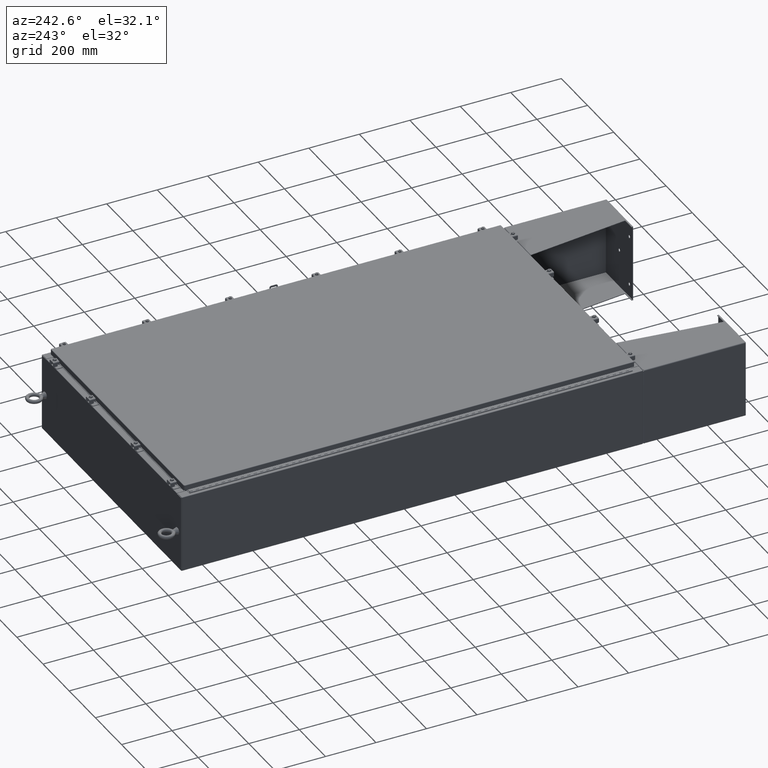
[diagram: clean part render]
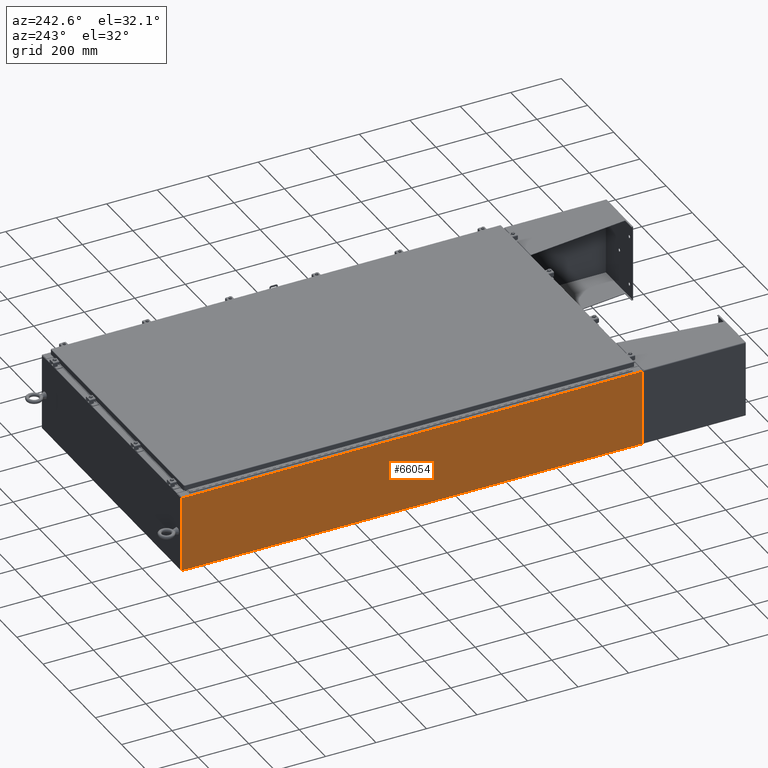
[diagram: same view with one face highlighted and labeled with its STEP entity id]
A machine part, auxiliary view. The second image highlights one B-rep face of the part: STEP entity #66054.
In plain terms, the highlighted planar face has unit normal (1, 0, 0).
Its self-contained STEP definition (entity closure, byte-faithful):
#893 = DIRECTION ( 'NONE',  ( 3.665280361804584200E-015, -2.229735323599324900E-032, -1.000000000000000000 ) ) ;
#1221 = CARTESIAN_POINT ( 'NONE',  ( -20.99999999999999600, 0.0000000000000000000, -7.723170125390783800E-014 ) ) ;
#2287 = ORIENTED_EDGE ( 'NONE', *, *, #67745, .F. ) ;
#4138 = CARTESIAN_POINT ( 'NONE',  ( -20.99999999999999600, -35.92529999999999300, -7.723170125390783800E-014 ) ) ;
#6625 = ORIENTED_EDGE ( 'NONE', *, *, #55552, .T. ) ;
#7713 = CARTESIAN_POINT ( 'NONE',  ( -21.00000000000003900, 35.92530000000000000, 11.83760000000000000 ) ) ;
#9719 = AXIS2_PLACEMENT_3D ( 'NONE', #1221, #25081, #66540 ) ;
#11700 = CARTESIAN_POINT ( 'NONE',  ( -20.99999999999999600, -35.92530000000000000, 0.01299999999999764400 ) ) ;
#19041 = PLANE ( 'NONE',  #9719 ) ;
#20461 = LINE ( 'NONE', #4138, #48362 ) ;
#25081 = DIRECTION ( 'NONE',  ( 1.000000000000000000, 7.921611184256002800E-046, 3.665280361804584200E-015 ) ) ;
#32420 = VERTEX_POINT ( 'NONE', #67339 ) ;
#36002 = EDGE_CURVE ( 'NONE', #56201, #76482, #20461, .T. ) ;
#36275 = VECTOR ( 'NONE', #67053, 39.37007874015748100 ) ;
#36411 = EDGE_CURVE ( 'NONE', #76482, #72015, #53842, .T. ) ;
#36459 = CARTESIAN_POINT ( 'NONE',  ( -20.99999999999999600, 35.92530000000000000, -7.723170125390783800E-014 ) ) ;
#37605 = ORIENTED_EDGE ( 'NONE', *, *, #36002, .T. ) ;
#38703 = LINE ( 'NONE', #36459, #68285 ) ;
#46730 = VECTOR ( 'NONE', #63701, 39.37007874015748100 ) ;
#48362 = VECTOR ( 'NONE', #51591, 39.37007874015748100 ) ;
#51591 = DIRECTION ( 'NONE',  ( -3.665280361804584200E-015, -4.379057701015054300E-047, 1.000000000000000000 ) ) ;
#51802 = CARTESIAN_POINT ( 'NONE',  ( -20.99999999999999600, 35.92530000000000000, 0.01299999999999764400 ) ) ;
#51994 = EDGE_LOOP ( 'NONE', ( #54900, #6625, #2287, #37605 ) ) ;
#53842 = LINE ( 'NONE', #61109, #36275 ) ;
#54900 = ORIENTED_EDGE ( 'NONE', *, *, #36411, .T. ) ;
#55552 = EDGE_CURVE ( 'NONE', #72015, #32420, #38703, .T. ) ;
#56201 = VERTEX_POINT ( 'NONE', #11700 ) ;
#59046 = FACE_OUTER_BOUND ( 'NONE', #51994, .T. ) ;
#61109 = CARTESIAN_POINT ( 'NONE',  ( -21.00000000000003900, -35.92530000000000000, 11.83760000000000000 ) ) ;
#62471 = LINE ( 'NONE', #51802, #46730 ) ;
#63701 = DIRECTION ( 'NONE',  ( -7.921611184256002800E-046, 1.000000000000000000, -2.941710864917871900E-060 ) ) ;
#66054 = ADVANCED_FACE ( 'NONE', ( #59046 ), #19041, .F. ) ;
#66540 = DIRECTION ( 'NONE',  ( 3.665280361804584200E-015, 0.0000000000000000000, -1.000000000000000000 ) ) ;
#67053 = DIRECTION ( 'NONE',  ( 0.0000000000000000000, 1.000000000000000000, 0.0000000000000000000 ) ) ;
#67339 = CARTESIAN_POINT ( 'NONE',  ( -20.99999999999999600, 35.92530000000000000, 0.01299999999999764900 ) ) ;
#67745 = EDGE_CURVE ( 'NONE', #56201, #32420, #62471, .T. ) ;
#68285 = VECTOR ( 'NONE', #893, 39.37007874015748100 ) ;
#69425 = CARTESIAN_POINT ( 'NONE',  ( -21.00000000000003900, -35.92530000000000000, 11.83760000000000000 ) ) ;
#72015 = VERTEX_POINT ( 'NONE', #7713 ) ;
#76482 = VERTEX_POINT ( 'NONE', #69425 ) ;